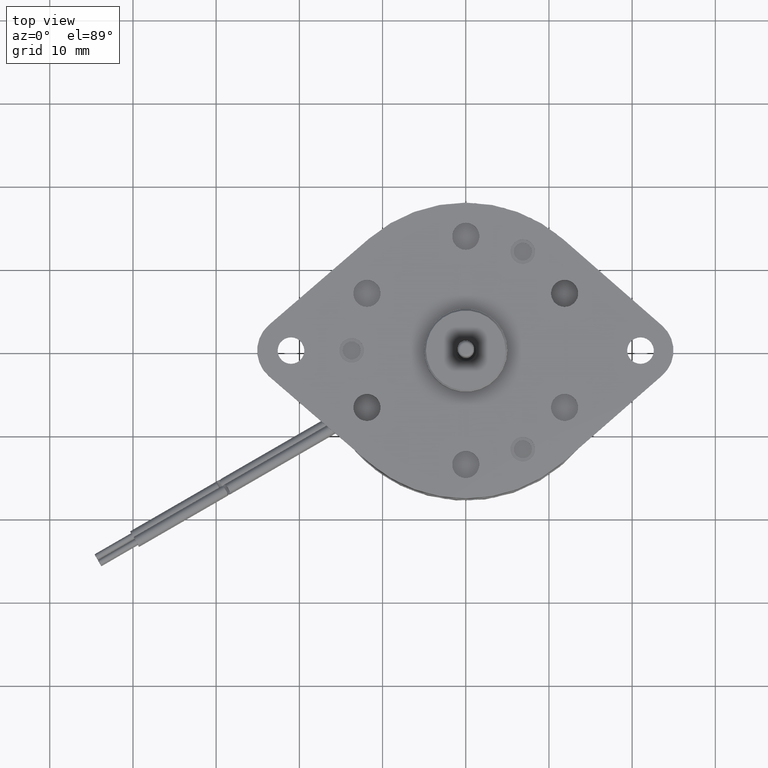
[diagram: clean part render]
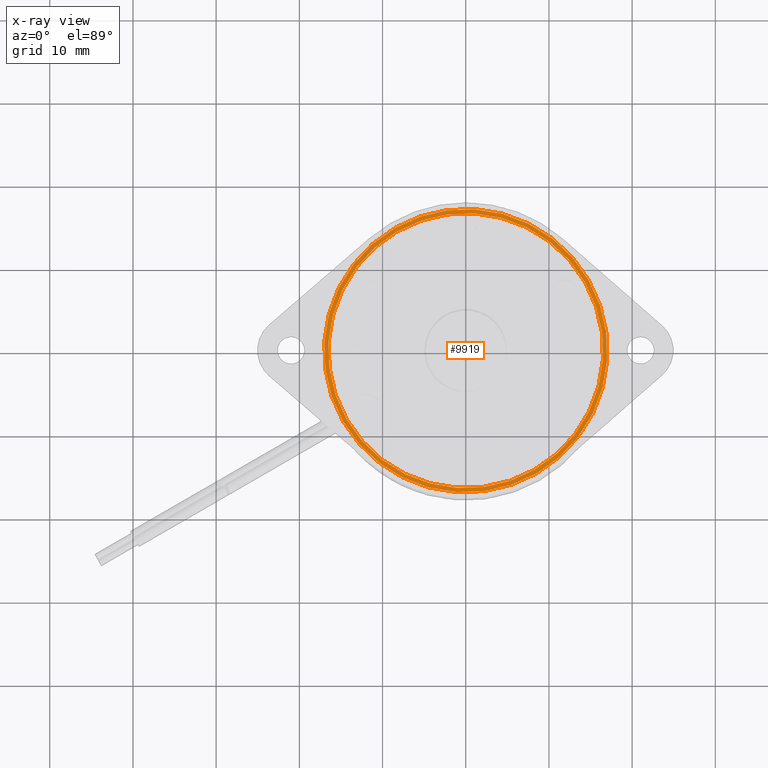
[diagram: x-ray — body ghosted, one internal face saturated and labeled with its STEP entity id]
A machine part, top view, then the same camera in x-ray: the body is ghosted and one INTERNAL B-rep face — a face not visible from any outside direction — is saturated and labeled: STEP entity #9919.
In plain terms, the highlighted planar face has unit normal (0, 0, 1).
Its self-contained STEP definition (entity closure, byte-faithful):
#9815=CARTESIAN_POINT('',(0.E0,0.E0,2.88E-1));
#9816=DIRECTION('',(0.E0,0.E0,1.E0));
#9817=DIRECTION('',(5.E-1,-8.660254037844E-1,0.E0));
#9818=AXIS2_PLACEMENT_3D('',#9815,#9816,#9817);
#9820=CARTESIAN_POINT('',(0.E0,0.E0,2.88E-1));
#9821=DIRECTION('',(0.E0,0.E0,1.E0));
#9822=DIRECTION('',(-5.E-1,8.660254037844E-1,0.E0));
#9823=AXIS2_PLACEMENT_3D('',#9820,#9821,#9822);
#9825=CARTESIAN_POINT('',(0.E0,0.E0,2.88E-1));
#9826=DIRECTION('',(0.E0,0.E0,-1.E0));
#9827=DIRECTION('',(5.E-1,-8.660254037844E-1,0.E0));
#9828=AXIS2_PLACEMENT_3D('',#9825,#9826,#9827);
#9830=CARTESIAN_POINT('',(0.E0,0.E0,2.88E-1));
#9831=DIRECTION('',(0.E0,0.E0,-1.E0));
#9832=DIRECTION('',(-5.E-1,8.660254037844E-1,0.E0));
#9833=AXIS2_PLACEMENT_3D('',#9830,#9831,#9832);
#9871=CARTESIAN_POINT('',(-3.2525E-1,5.633495251618E-1,2.88E-1));
#9872=CARTESIAN_POINT('',(3.2525E-1,-5.633495251618E-1,2.88E-1));
#9873=VERTEX_POINT('',#9871);
#9874=VERTEX_POINT('',#9872);
#9879=CARTESIAN_POINT('',(3.3525E-1,-5.806700332375E-1,2.88E-1));
#9880=CARTESIAN_POINT('',(-3.3525E-1,5.806700332375E-1,2.88E-1));
#9881=VERTEX_POINT('',#9879);
#9882=VERTEX_POINT('',#9880);
#9903=CARTESIAN_POINT('',(0.E0,0.E0,2.88E-1));
#9904=DIRECTION('',(0.E0,0.E0,1.E0));
#9905=DIRECTION('',(5.E-1,-8.660254037844E-1,0.E0));
#9906=AXIS2_PLACEMENT_3D('',#9903,#9904,#9905);
#9907=PLANE('',#9906);
#9909=ORIENTED_EDGE('',*,*,#9908,.T.);
#9911=ORIENTED_EDGE('',*,*,#9910,.T.);
#9912=EDGE_LOOP('',(#9909,#9911));
#9913=FACE_OUTER_BOUND('',#9912,.F.);
#9914=ORIENTED_EDGE('',*,*,#9892,.T.);
#9916=ORIENTED_EDGE('',*,*,#9915,.T.);
#9917=EDGE_LOOP('',(#9914,#9916));
#9918=FACE_BOUND('',#9917,.F.);
#9919=ADVANCED_FACE('',(#9913,#9918),#9907,.F.);
#9819=CIRCLE('',#9818,6.705E-1);
#9824=CIRCLE('',#9823,6.705E-1);
#9829=CIRCLE('',#9828,6.505E-1);
#9834=CIRCLE('',#9833,6.505E-1);
#9892=EDGE_CURVE('',#9874,#9873,#9829,.T.);
#9908=EDGE_CURVE('',#9881,#9882,#9819,.T.);
#9910=EDGE_CURVE('',#9882,#9881,#9824,.T.);
#9915=EDGE_CURVE('',#9873,#9874,#9834,.T.);